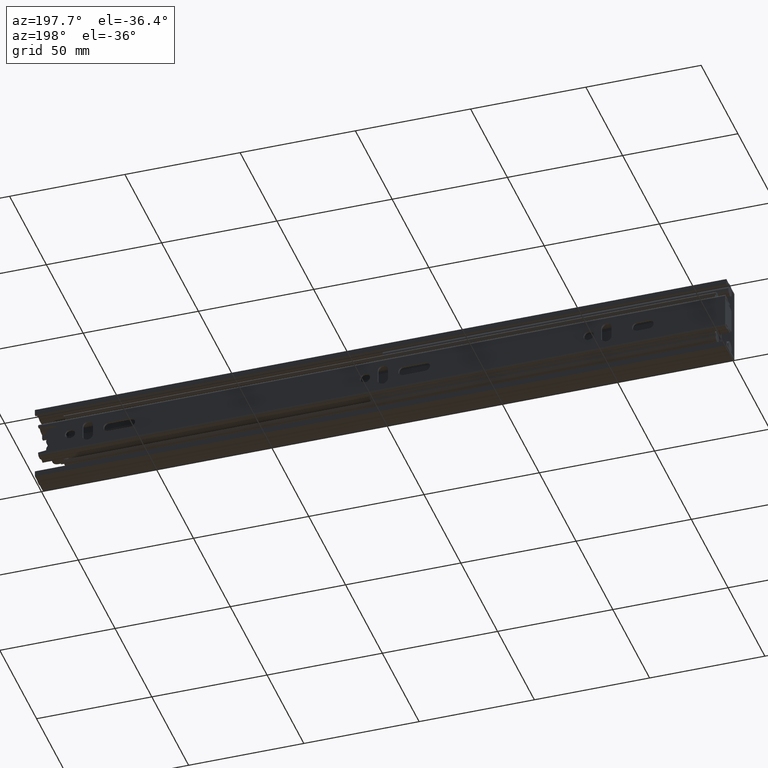
[diagram: clean part render]
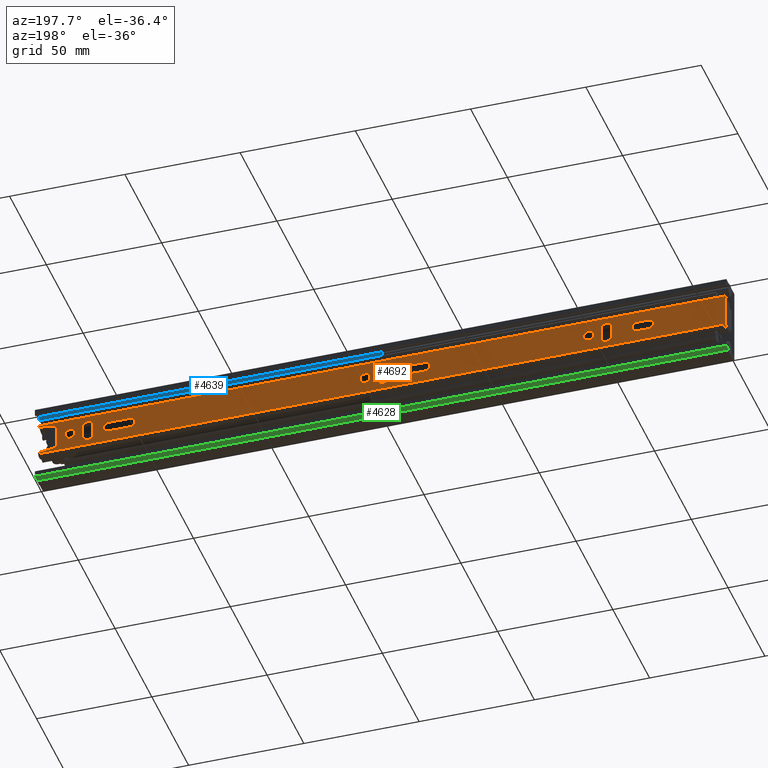
[diagram: same view with three faces highlighted in distinct colors, each labeled with its STEP entity id]
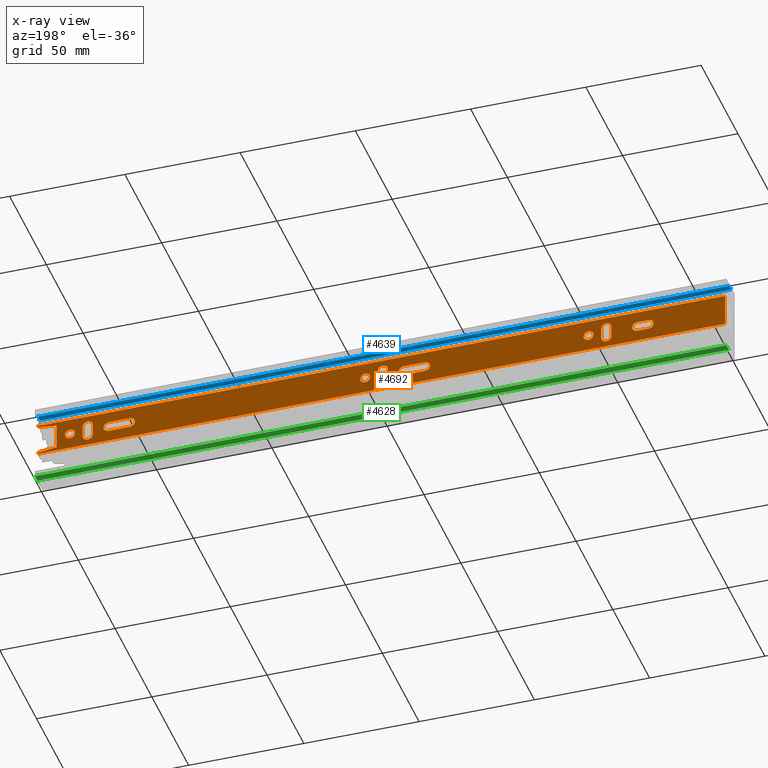
[diagram: x-ray of the same camera — body ghosted, the three highlighted faces saturated]
A machine part, auxiliary view with three faces highlighted in distinct colors.
The next image is the same camera in x-ray (body ghosted, the three faces saturated) — at least one of them is partly hidden behind the body in this view.
Their STEP definitions:

[orange] entity #4692 — the highlighted planar face has unit normal (-0, 1, -0).
#187=FACE_BOUND('',#651,.T.);
#188=FACE_BOUND('',#652,.T.);
#189=FACE_BOUND('',#653,.T.);
#190=FACE_BOUND('',#654,.T.);
#191=FACE_BOUND('',#655,.T.);
#192=FACE_BOUND('',#656,.T.);
#193=FACE_BOUND('',#657,.T.);
#194=FACE_BOUND('',#658,.T.);
#195=FACE_BOUND('',#659,.T.);
#367=FACE_OUTER_BOUND('',#650,.T.);
#650=EDGE_LOOP('',(#3944,#3945,#3946,#3947,#3948,#3949,#3950,#3951));
#651=EDGE_LOOP('',(#3952,#3953,#3954,#3955));
#652=EDGE_LOOP('',(#3956,#3957,#3958,#3959));
#653=EDGE_LOOP('',(#3960,#3961,#3962,#3963));
#654=EDGE_LOOP('',(#3964));
#655=EDGE_LOOP('',(#3965));
#656=EDGE_LOOP('',(#3966));
#657=EDGE_LOOP('',(#3967,#3968,#3969,#3970));
#658=EDGE_LOOP('',(#3971,#3972,#3973,#3974));
#659=EDGE_LOOP('',(#3975,#3976,#3977,#3978));
#1070=LINE('',#7468,#1560);
#1072=LINE('',#7474,#1562);
#1084=LINE('',#7520,#1574);
#1085=LINE('',#7522,#1575);
#1086=LINE('',#7524,#1576);
#1087=LINE('',#7526,#1577);
#1088=LINE('',#7528,#1578);
#1089=LINE('',#7529,#1579);
#1090=LINE('',#7534,#1580);
#1091=LINE('',#7537,#1581);
#1092=LINE('',#7542,#1582);
#1093=LINE('',#7545,#1583);
#1094=LINE('',#7550,#1584);
#1095=LINE('',#7553,#1585);
#1096=LINE('',#7564,#1586);
#1097=LINE('',#7567,#1587);
#1098=LINE('',#7572,#1588);
#1099=LINE('',#7575,#1589);
#1100=LINE('',#7580,#1590);
#1101=LINE('',#7583,#1591);
#1560=VECTOR('',#6096,298.);
#1562=VECTOR('',#6102,14.3000000000001);
#1574=VECTOR('',#6138,0.650000000000026);
#1575=VECTOR('',#6139,8.06225774829855);
#1576=VECTOR('',#6140,11.);
#1577=VECTOR('',#6141,8.06225774829856);
#1578=VECTOR('',#6142,0.650000000000024);
#1579=VECTOR('',#6143,298.);
#1580=VECTOR('',#6146,9.3);
#1581=VECTOR('',#6149,9.3);
#1582=VECTOR('',#6152,4.90000000000003);
#1583=VECTOR('',#6155,4.90000000000003);
#1584=VECTOR('',#6158,4.9);
#1585=VECTOR('',#6161,4.9);
#1586=VECTOR('',#6170,4.9);
#1587=VECTOR('',#6173,4.9);
#1588=VECTOR('',#6176,4.90000000000001);
#1589=VECTOR('',#6179,4.90000000000001);
#1590=VECTOR('',#6182,9.3);
#1591=VECTOR('',#6185,9.3);
#1865=CIRCLE('',#5076,2.2);
#1866=CIRCLE('',#5077,2.2);
#1867=CIRCLE('',#5078,2.2);
#1868=CIRCLE('',#5079,2.2);
#1869=CIRCLE('',#5080,2.2);
#1870=CIRCLE('',#5081,2.2);
#1871=CIRCLE('',#5082,2.2);
#1872=CIRCLE('',#5083,2.2);
#1873=CIRCLE('',#5084,2.2);
#1874=CIRCLE('',#5085,2.2);
#1875=CIRCLE('',#5086,2.2);
#1876=CIRCLE('',#5087,2.2);
#1877=CIRCLE('',#5088,2.2);
#1878=CIRCLE('',#5089,2.2);
#1879=CIRCLE('',#5090,2.2);
#2211=VERTEX_POINT('',#7465);
#2212=VERTEX_POINT('',#7467);
#2214=VERTEX_POINT('',#7473);
#2236=VERTEX_POINT('',#7519);
#2237=VERTEX_POINT('',#7521);
#2238=VERTEX_POINT('',#7523);
#2239=VERTEX_POINT('',#7525);
#2240=VERTEX_POINT('',#7527);
#2241=VERTEX_POINT('',#7530);
#2242=VERTEX_POINT('',#7531);
#2243=VERTEX_POINT('',#7533);
#2244=VERTEX_POINT('',#7535);
#2245=VERTEX_POINT('',#7538);
#2246=VERTEX_POINT('',#7539);
#2247=VERTEX_POINT('',#7541);
#2248=VERTEX_POINT('',#7543);
#2249=VERTEX_POINT('',#7546);
#2250=VERTEX_POINT('',#7547);
#2251=VERTEX_POINT('',#7549);
#2252=VERTEX_POINT('',#7551);
#2253=VERTEX_POINT('',#7554);
#2254=VERTEX_POINT('',#7556);
#2255=VERTEX_POINT('',#7558);
#2256=VERTEX_POINT('',#7560);
#2257=VERTEX_POINT('',#7561);
#2258=VERTEX_POINT('',#7563);
#2259=VERTEX_POINT('',#7565);
#2260=VERTEX_POINT('',#7568);
#2261=VERTEX_POINT('',#7569);
#2262=VERTEX_POINT('',#7571);
#2263=VERTEX_POINT('',#7573);
#2264=VERTEX_POINT('',#7576);
#2265=VERTEX_POINT('',#7577);
#2266=VERTEX_POINT('',#7579);
#2267=VERTEX_POINT('',#7581);
#2807=EDGE_CURVE('',#2211,#2212,#1070,.T.);
#2810=EDGE_CURVE('',#2212,#2214,#1072,.T.);
#2833=EDGE_CURVE('',#2236,#2211,#1084,.T.);
#2834=EDGE_CURVE('',#2236,#2237,#1085,.T.);
#2835=EDGE_CURVE('',#2237,#2238,#1086,.T.);
#2836=EDGE_CURVE('',#2238,#2239,#1087,.T.);
#2837=EDGE_CURVE('',#2240,#2239,#1088,.T.);
#2838=EDGE_CURVE('',#2214,#2240,#1089,.T.);
#2839=EDGE_CURVE('',#2241,#2242,#1865,.T.);
#2840=EDGE_CURVE('',#2242,#2243,#1090,.T.);
#2841=EDGE_CURVE('',#2243,#2244,#1866,.T.);
#2842=EDGE_CURVE('',#2244,#2241,#1091,.T.);
#2843=EDGE_CURVE('',#2245,#2246,#1867,.T.);
#2844=EDGE_CURVE('',#2246,#2247,#1092,.T.);
#2845=EDGE_CURVE('',#2247,#2248,#1868,.T.);
#2846=EDGE_CURVE('',#2248,#2245,#1093,.T.);
#2847=EDGE_CURVE('',#2249,#2250,#1869,.T.);
#2848=EDGE_CURVE('',#2250,#2251,#1094,.T.);
#2849=EDGE_CURVE('',#2251,#2252,#1870,.T.);
#2850=EDGE_CURVE('',#2252,#2249,#1095,.T.);
#2851=EDGE_CURVE('',#2253,#2253,#1871,.T.);
#2852=EDGE_CURVE('',#2254,#2254,#1872,.T.);
#2853=EDGE_CURVE('',#2255,#2255,#1873,.T.);
#2854=EDGE_CURVE('',#2256,#2257,#1874,.T.);
#2855=EDGE_CURVE('',#2257,#2258,#1096,.T.);
#2856=EDGE_CURVE('',#2258,#2259,#1875,.T.);
#2857=EDGE_CURVE('',#2259,#2256,#1097,.T.);
#2858=EDGE_CURVE('',#2260,#2261,#1876,.T.);
#2859=EDGE_CURVE('',#2261,#2262,#1098,.T.);
#2860=EDGE_CURVE('',#2262,#2263,#1877,.T.);
#2861=EDGE_CURVE('',#2263,#2260,#1099,.T.);
#2862=EDGE_CURVE('',#2264,#2265,#1878,.T.);
#2863=EDGE_CURVE('',#2265,#2266,#1100,.T.);
#2864=EDGE_CURVE('',#2266,#2267,#1879,.T.);
#2865=EDGE_CURVE('',#2267,#2264,#1101,.T.);
#3944=ORIENTED_EDGE('',*,*,#2807,.F.);
#3945=ORIENTED_EDGE('',*,*,#2833,.F.);
#3946=ORIENTED_EDGE('',*,*,#2834,.T.);
#3947=ORIENTED_EDGE('',*,*,#2835,.T.);
#3948=ORIENTED_EDGE('',*,*,#2836,.T.);
#3949=ORIENTED_EDGE('',*,*,#2837,.F.);
#3950=ORIENTED_EDGE('',*,*,#2838,.F.);
#3951=ORIENTED_EDGE('',*,*,#2810,.F.);
#3952=ORIENTED_EDGE('',*,*,#2839,.T.);
#3953=ORIENTED_EDGE('',*,*,#2840,.T.);
#3954=ORIENTED_EDGE('',*,*,#2841,.T.);
#3955=ORIENTED_EDGE('',*,*,#2842,.T.);
#3956=ORIENTED_EDGE('',*,*,#2843,.T.);
#3957=ORIENTED_EDGE('',*,*,#2844,.T.);
#3958=ORIENTED_EDGE('',*,*,#2845,.T.);
#3959=ORIENTED_EDGE('',*,*,#2846,.T.);
#3960=ORIENTED_EDGE('',*,*,#2847,.T.);
#3961=ORIENTED_EDGE('',*,*,#2848,.T.);
#3962=ORIENTED_EDGE('',*,*,#2849,.T.);
#3963=ORIENTED_EDGE('',*,*,#2850,.T.);
#3964=ORIENTED_EDGE('',*,*,#2851,.T.);
#3965=ORIENTED_EDGE('',*,*,#2852,.T.);
#3966=ORIENTED_EDGE('',*,*,#2853,.T.);
#3967=ORIENTED_EDGE('',*,*,#2854,.T.);
#3968=ORIENTED_EDGE('',*,*,#2855,.T.);
#3969=ORIENTED_EDGE('',*,*,#2856,.T.);
#3970=ORIENTED_EDGE('',*,*,#2857,.T.);
#3971=ORIENTED_EDGE('',*,*,#2858,.T.);
#3972=ORIENTED_EDGE('',*,*,#2859,.T.);
#3973=ORIENTED_EDGE('',*,*,#2860,.T.);
#3974=ORIENTED_EDGE('',*,*,#2861,.T.);
#3975=ORIENTED_EDGE('',*,*,#2862,.T.);
#3976=ORIENTED_EDGE('',*,*,#2863,.T.);
#3977=ORIENTED_EDGE('',*,*,#2864,.T.);
#3978=ORIENTED_EDGE('',*,*,#2865,.T.);
#4482=PLANE('',#5075);
#4692=ADVANCED_FACE('',(#367,#187,#188,#189,#190,#191,#192,#193,#194,#195),
#4482,.T.);
#5075=AXIS2_PLACEMENT_3D('',#7518,#6136,#6137);
#5076=AXIS2_PLACEMENT_3D('',#7532,#6144,#6145);
#5077=AXIS2_PLACEMENT_3D('',#7536,#6147,#6148);
#5078=AXIS2_PLACEMENT_3D('',#7540,#6150,#6151);
#5079=AXIS2_PLACEMENT_3D('',#7544,#6153,#6154);
#5080=AXIS2_PLACEMENT_3D('',#7548,#6156,#6157);
#5081=AXIS2_PLACEMENT_3D('',#7552,#6159,#6160);
#5082=AXIS2_PLACEMENT_3D('',#7555,#6162,#6163);
#5083=AXIS2_PLACEMENT_3D('',#7557,#6164,#6165);
#5084=AXIS2_PLACEMENT_3D('',#7559,#6166,#6167);
#5085=AXIS2_PLACEMENT_3D('',#7562,#6168,#6169);
#5086=AXIS2_PLACEMENT_3D('',#7566,#6171,#6172);
#5087=AXIS2_PLACEMENT_3D('',#7570,#6174,#6175);
#5088=AXIS2_PLACEMENT_3D('',#7574,#6177,#6178);
#5089=AXIS2_PLACEMENT_3D('',#7578,#6180,#6181);
#5090=AXIS2_PLACEMENT_3D('',#7582,#6183,#6184);
#6096=DIRECTION('',(-1.,0.,0.));
#6102=DIRECTION('',(0.,0.,-1.));
#6136=DIRECTION('center_axis',(0.,1.,0.));
#6137=DIRECTION('ref_axis',(0.,0.,1.));
#6138=DIRECTION('',(0.,0.,1.));
#6139=DIRECTION('',(-0.992277876713668,0.,-0.124034734589208));
#6140=DIRECTION('',(0.,0.,-1.));
#6141=DIRECTION('',(0.992277876713668,0.,-0.124034734589208));
#6142=DIRECTION('',(0.,0.,1.));
#6143=DIRECTION('',(1.,0.,0.));
#6144=DIRECTION('center_axis',(0.,-1.,0.));
#6145=DIRECTION('ref_axis',(0.,0.,-1.));
#6146=DIRECTION('',(1.,0.,2.38757639704335E-16));
#6147=DIRECTION('center_axis',(0.,-1.,0.));
#6148=DIRECTION('ref_axis',(0.,0.,1.));
#6149=DIRECTION('',(-1.,0.,-3.58136459556502E-16));
#6150=DIRECTION('center_axis',(0.,-1.,0.));
#6151=DIRECTION('ref_axis',(-1.,0.,6.05576195250088E-15));
#6152=DIRECTION('',(-7.25043607918466E-15,0.,-1.));
#6153=DIRECTION('center_axis',(0.,-1.,0.));
#6154=DIRECTION('ref_axis',(1.,0.,-6.05576195250079E-15));
#6155=DIRECTION('',(-7.25043607918466E-15,0.,1.));
#6156=DIRECTION('center_axis',(0.,-1.,0.));
#6157=DIRECTION('ref_axis',(-1.,0.,0.));
#6158=DIRECTION('',(0.,0.,-1.));
#6159=DIRECTION('center_axis',(0.,-1.,0.));
#6160=DIRECTION('ref_axis',(1.,0.,0.));
#6161=DIRECTION('',(1.81260901979617E-15,0.,1.));
#6162=DIRECTION('center_axis',(0.,-1.,0.));
#6163=DIRECTION('ref_axis',(-1.,0.,0.));
#6164=DIRECTION('center_axis',(0.,-1.,0.));
#6165=DIRECTION('ref_axis',(-1.,0.,0.));
#6166=DIRECTION('center_axis',(0.,-1.,0.));
#6167=DIRECTION('ref_axis',(-1.,0.,0.));
#6168=DIRECTION('center_axis',(0.,-1.,0.));
#6169=DIRECTION('ref_axis',(0.,0.,1.));
#6170=DIRECTION('',(1.,0.,0.));
#6171=DIRECTION('center_axis',(0.,-1.,0.));
#6172=DIRECTION('ref_axis',(0.,0.,-1.));
#6173=DIRECTION('',(-1.,0.,0.));
#6174=DIRECTION('center_axis',(0.,-1.,0.));
#6175=DIRECTION('ref_axis',(-1.,0.,-1.00929365875014E-15));
#6176=DIRECTION('',(0.,0.,-1.));
#6177=DIRECTION('center_axis',(0.,-1.,0.));
#6178=DIRECTION('ref_axis',(1.,0.,1.00929365875014E-15));
#6179=DIRECTION('',(-7.25043607918469E-15,0.,1.));
#6180=DIRECTION('center_axis',(0.,-1.,0.));
#6181=DIRECTION('ref_axis',(0.,0.,-1.));
#6182=DIRECTION('',(1.,0.,0.));
#6183=DIRECTION('center_axis',(0.,-1.,0.));
#6184=DIRECTION('ref_axis',(0.,0.,1.));
#6185=DIRECTION('',(-1.,0.,-2.38757639704335E-16));
#7465=CARTESIAN_POINT('',(149.,12.7,7.15000000000003));
#7467=CARTESIAN_POINT('',(-149.,12.7,7.15000000000003));
#7468=CARTESIAN_POINT('',(0.,12.7,7.15000000000003));
#7473=CARTESIAN_POINT('',(-149.,12.7,-7.15000000000003));
#7474=CARTESIAN_POINT('',(-149.,12.7,0.));
#7518=CARTESIAN_POINT('Origin',(0.,12.7,-8.15));
#7519=CARTESIAN_POINT('',(149.,12.7,6.5));
#7520=CARTESIAN_POINT('',(149.,12.7,-8.15));
#7521=CARTESIAN_POINT('',(141.,12.7,5.5));
#7522=CARTESIAN_POINT('',(74.7446153846154,12.7,-2.78192307692306));
#7523=CARTESIAN_POINT('',(141.,12.7,-5.5));
#7524=CARTESIAN_POINT('',(141.,12.7,-1.325));
#7525=CARTESIAN_POINT('',(149.,12.7,-6.5));
#7526=CARTESIAN_POINT('',(71.7476923076923,12.7,3.15653846153846));
#7527=CARTESIAN_POINT('',(149.,12.7,-7.15000000000003));
#7528=CARTESIAN_POINT('',(149.,12.7,-8.15));
#7529=CARTESIAN_POINT('',(0.,12.7,-7.15000000000003));
#7530=CARTESIAN_POINT('',(109.2,12.7,2.20000000000002));
#7531=CARTESIAN_POINT('',(109.2,12.7,-2.19999999999998));
#7532=CARTESIAN_POINT('Origin',(109.2,12.7,1.88737914186277E-14));
#7533=CARTESIAN_POINT('',(118.5,12.7,-2.19999999999998));
#7534=CARTESIAN_POINT('',(54.6,12.7,-2.19999999999999));
#7535=CARTESIAN_POINT('',(118.5,12.7,2.20000000000002));
#7536=CARTESIAN_POINT('Origin',(118.5,12.7,3.33066907387547E-15));
#7537=CARTESIAN_POINT('',(59.25,12.7,2.2));
#7538=CARTESIAN_POINT('',(129.7,12.7,2.44999999999988));
#7539=CARTESIAN_POINT('',(125.3,12.7,2.44999999999991));
#7540=CARTESIAN_POINT('Origin',(127.5,12.7,2.44999999999989));
#7541=CARTESIAN_POINT('',(125.3,12.7,-2.45000000000012));
#7542=CARTESIAN_POINT('',(125.3,12.7,-2.8500000000005));
#7543=CARTESIAN_POINT('',(129.7,12.7,-2.45000000000015));
#7544=CARTESIAN_POINT('Origin',(127.5,12.7,-2.45000000000013));
#7545=CARTESIAN_POINT('',(129.7,12.7,-5.2999999999996));
#7546=CARTESIAN_POINT('',(-95.3,12.7,2.45));
#7547=CARTESIAN_POINT('',(-99.7,12.7,2.45));
#7548=CARTESIAN_POINT('Origin',(-97.5,12.7,2.45));
#7549=CARTESIAN_POINT('',(-99.7,12.7,-2.45));
#7550=CARTESIAN_POINT('',(-99.7,12.7,-2.85));
#7551=CARTESIAN_POINT('',(-95.3,12.7,-2.45));
#7552=CARTESIAN_POINT('Origin',(-97.5,12.7,-2.45));
#7553=CARTESIAN_POINT('',(-95.3,12.7,-5.29999999999991));
#7554=CARTESIAN_POINT('',(137.4,12.7,-2.69422295812418E-16));
#7555=CARTESIAN_POINT('Origin',(135.2,12.7,0.));
#7556=CARTESIAN_POINT('',(-87.6,12.7,8.40800728812739E-16));
#7557=CARTESIAN_POINT('Origin',(-89.8,12.7,1.11022302462516E-15));
#7558=CARTESIAN_POINT('',(9.40000000000001,12.7,-2.69422295812418E-16));
#7559=CARTESIAN_POINT('Origin',(7.20000000000001,12.7,0.));
#7560=CARTESIAN_POINT('',(-115.8,12.7,2.2));
#7561=CARTESIAN_POINT('',(-115.8,12.7,-2.2));
#7562=CARTESIAN_POINT('Origin',(-115.8,12.7,0.));
#7563=CARTESIAN_POINT('',(-110.9,12.7,-2.2));
#7564=CARTESIAN_POINT('',(-57.9,12.7,-2.2));
#7565=CARTESIAN_POINT('',(-110.9,12.7,2.2));
#7566=CARTESIAN_POINT('Origin',(-110.9,12.7,0.));
#7567=CARTESIAN_POINT('',(-55.45,12.7,2.2));
#7568=CARTESIAN_POINT('',(1.69999999999998,12.7,2.44999999999987));
#7569=CARTESIAN_POINT('',(-2.7,12.7,2.44999999999987));
#7570=CARTESIAN_POINT('Origin',(-0.499999999999989,12.7,2.44999999999987));
#7571=CARTESIAN_POINT('',(-2.7,12.7,-2.45000000000014));
#7572=CARTESIAN_POINT('',(-2.7,12.7,-2.85000000000007));
#7573=CARTESIAN_POINT('',(1.70000000000002,12.7,-2.45000000000014));
#7574=CARTESIAN_POINT('Origin',(-0.499999999999989,12.7,-2.45000000000014));
#7575=CARTESIAN_POINT('',(1.70000000000004,12.7,-5.30000000000006));
#7576=CARTESIAN_POINT('',(-18.8,12.7,2.2));
#7577=CARTESIAN_POINT('',(-18.8,12.7,-2.2));
#7578=CARTESIAN_POINT('Origin',(-18.8,12.7,0.));
#7579=CARTESIAN_POINT('',(-9.49999999999999,12.7,-2.2));
#7580=CARTESIAN_POINT('',(-9.4,12.7,-2.2));
#7581=CARTESIAN_POINT('',(-9.49999999999999,12.7,2.2));
#7582=CARTESIAN_POINT('Origin',(-9.49999999999999,12.7,0.));
#7583=CARTESIAN_POINT('',(-4.75,12.7,2.2));

[blue] entity #4639 — the highlighted cylindrical surface (edge-blend (fillet) strip) has radius 2.25 mm, axis along (1, 0, 0).
#94=CYLINDRICAL_SURFACE('',#4970,2.25);
#314=FACE_OUTER_BOUND('',#587,.T.);
#587=EDGE_LOOP('',(#3648,#3649,#3650,#3651));
#980=LINE('',#7199,#1470);
#981=LINE('',#7201,#1471);
#1470=VECTOR('',#5822,300.);
#1471=VECTOR('',#5825,300.);
#1808=CIRCLE('',#4877,2.25);
#1815=CIRCLE('',#4962,2.25);
#2094=VERTEX_POINT('',#6968);
#2095=VERTEX_POINT('',#6970);
#2124=VERTEX_POINT('',#7181);
#2125=VERTEX_POINT('',#7183);
#2567=EDGE_CURVE('',#2094,#2095,#1808,.T.);
#2672=EDGE_CURVE('',#2124,#2125,#1815,.T.);
#2680=EDGE_CURVE('',#2124,#2095,#980,.T.);
#2681=EDGE_CURVE('',#2125,#2094,#981,.T.);
#3648=ORIENTED_EDGE('',*,*,#2680,.T.);
#3649=ORIENTED_EDGE('',*,*,#2567,.F.);
#3650=ORIENTED_EDGE('',*,*,#2681,.F.);
#3651=ORIENTED_EDGE('',*,*,#2672,.F.);
#4639=ADVANCED_FACE('',(#314),#94,.F.);
#4877=AXIS2_PLACEMENT_3D('',#6971,#5531,#5532);
#4962=AXIS2_PLACEMENT_3D('',#7184,#5799,#5800);
#4970=AXIS2_PLACEMENT_3D('',#7200,#5823,#5824);
#5531=DIRECTION('center_axis',(-1.,0.,0.));
#5532=DIRECTION('ref_axis',(0.,-0.599999999999997,-0.800000000000002));
#5799=DIRECTION('center_axis',(1.,0.,0.));
#5800=DIRECTION('ref_axis',(0.,-0.599999999999997,-0.800000000000002));
#5822=DIRECTION('',(1.,0.,0.));
#5823=DIRECTION('center_axis',(1.,0.,0.));
#5824=DIRECTION('ref_axis',(0.,-0.599999999999997,-0.800000000000002));
#5825=DIRECTION('',(1.,0.,0.));
#6968=CARTESIAN_POINT('',(150.,4.64999999999999,16.));
#6970=CARTESIAN_POINT('',(150.,7.34999999999999,16.));
#6971=CARTESIAN_POINT('Origin',(150.,6.00000000000001,14.2));
#7181=CARTESIAN_POINT('',(-150.,7.34999999999999,16.));
#7183=CARTESIAN_POINT('',(-150.,4.64999999999999,16.));
#7184=CARTESIAN_POINT('Origin',(-150.,6.00000000000001,14.2));
#7199=CARTESIAN_POINT('',(0.,7.34999999999999,16.));
#7200=CARTESIAN_POINT('Origin',(0.,6.00000000000001,14.2));
#7201=CARTESIAN_POINT('',(0.,4.64999999999999,16.));

[green] entity #4628 — the highlighted planar face has unit normal (0, 0, -1).
#303=FACE_OUTER_BOUND('',#576,.T.);
#576=EDGE_LOOP('',(#3588,#3589,#3590,#3591));
#959=LINE('',#7151,#1449);
#961=LINE('',#7155,#1451);
#962=LINE('',#7157,#1452);
#963=LINE('',#7158,#1453);
#1449=VECTOR('',#5771,300.);
#1451=VECTOR('',#5775,3.35000000000001);
#1452=VECTOR('',#5776,300.);
#1453=VECTOR('',#5777,3.35000000000001);
#2112=VERTEX_POINT('',#7148);
#2113=VERTEX_POINT('',#7150);
#2114=VERTEX_POINT('',#7154);
#2115=VERTEX_POINT('',#7156);
#2655=EDGE_CURVE('',#2113,#2112,#959,.T.);
#2657=EDGE_CURVE('',#2114,#2112,#961,.T.);
#2658=EDGE_CURVE('',#2115,#2114,#962,.T.);
#2659=EDGE_CURVE('',#2113,#2115,#963,.T.);
#3588=ORIENTED_EDGE('',*,*,#2655,.T.);
#3589=ORIENTED_EDGE('',*,*,#2657,.F.);
#3590=ORIENTED_EDGE('',*,*,#2658,.F.);
#3591=ORIENTED_EDGE('',*,*,#2659,.F.);
#4440=PLANE('',#4955);
#4628=ADVANCED_FACE('',(#303),#4440,.T.);
#4955=AXIS2_PLACEMENT_3D('',#7153,#5773,#5774);
#5771=DIRECTION('',(1.,0.,0.));
#5773=DIRECTION('center_axis',(0.,6.62819716194122E-16,-1.));
#5774=DIRECTION('ref_axis',(0.,1.,7.105427357601E-16));
#5775=DIRECTION('',(0.,1.,6.62819716194122E-16));
#5776=DIRECTION('',(1.,0.,0.));
#5777=DIRECTION('',(0.,-1.,-6.62819716194122E-16));
#7148=CARTESIAN_POINT('',(150.,11.,-17.));
#7150=CARTESIAN_POINT('',(-150.,11.,-17.));
#7151=CARTESIAN_POINT('',(0.,11.,-17.));
#7153=CARTESIAN_POINT('Origin',(0.,7.65,-17.));
#7154=CARTESIAN_POINT('',(150.,7.65,-17.));
#7155=CARTESIAN_POINT('',(150.,7.65,-17.));
#7156=CARTESIAN_POINT('',(-150.,7.65,-17.));
#7157=CARTESIAN_POINT('',(0.,7.65,-17.));
#7158=CARTESIAN_POINT('',(-150.,7.65,-17.));